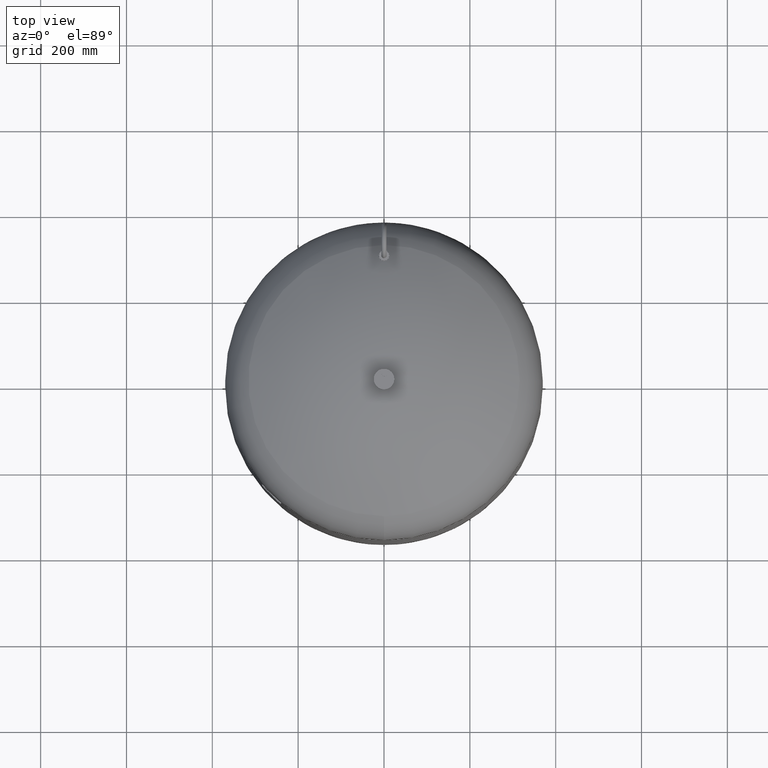
[diagram: clean part render]
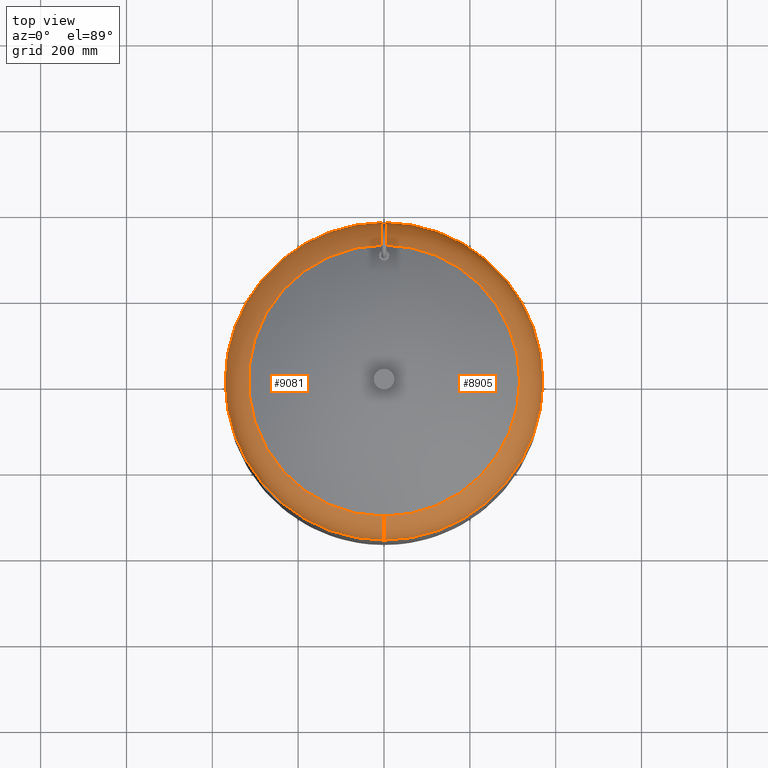
[diagram: same view with one multi-face feature highlighted, each face labeled with its STEP entity id]
A machine part, top view. The highlighted faces form ONE feature: a constant-radius fillet chain: 2 tangent blend faces with common blend radius 115.5 mm. The faces share edges in the B-rep.
Their STEP definitions:
[1] entity #9081 (Torus):
#8827=CARTESIAN_POINT('',(-370.0,1.062956E-014,1031.206120388130600));
#8828=VERTEX_POINT('',#8827);
#8835=CARTESIAN_POINT('',(2.218985E-014,369.999999999999940,1031.206120388130300));
#8836=VERTEX_POINT('',#8835);
#8837=CARTESIAN_POINT('',(-2.312058E-014,-3.468087E-014,1031.206120388130600));
#8838=DIRECTION('',(0.0,0.0,-1.0));
#8839=DIRECTION('',(1.0,0.0,0.0));
#8840=AXIS2_PLACEMENT_3D('',#8837,#8838,#8839);
#8841=CIRCLE('',#8840,370.0);
#8842=EDGE_CURVE('',#8828,#8836,#8841,.T.);
#8859=CARTESIAN_POINT('',(-2.312058E-014,-370.000000000000060,1031.206120388130600));
#8860=VERTEX_POINT('',#8859);
#8861=CARTESIAN_POINT('',(-1.114251E-014,-315.931034482758610,1129.014494274920500));
#8862=VERTEX_POINT('',#8861);
#8863=CARTESIAN_POINT('',(-2.312058E-014,-254.500000000000060,1031.206120388130300));
#8864=DIRECTION('',(-1.0,0.0,0.0));
#8865=DIRECTION('',(0.0,-1.0,0.0));
#8866=AXIS2_PLACEMENT_3D('',#8863,#8864,#8865);
#8867=CIRCLE('',#8866,115.500000000000000);
#8868=EDGE_CURVE('',#8860,#8862,#8867,.T.);
#8878=CARTESIAN_POINT('',(2.754660E-014,315.931034482758610,1129.014494274920300));
#8879=VERTEX_POINT('',#8878);
#8880=CARTESIAN_POINT('',(8.045650E-015,254.500000000000000,1031.206120388130300));
#8881=DIRECTION('',(1.0,0.0,0.0));
#8882=DIRECTION('',(0.0,1.0,0.0));
#8883=AXIS2_PLACEMENT_3D('',#8880,#8881,#8882);
#8884=CIRCLE('',#8883,115.500000000000000);
#8885=EDGE_CURVE('',#8836,#8879,#8884,.T.);
#9053=CARTESIAN_POINT('',(-1.114251E-014,-1.671377E-014,1129.014494274920500));
#9054=DIRECTION('',(0.0,0.0,-1.0));
#9055=DIRECTION('',(1.0,0.0,0.0));
#9056=AXIS2_PLACEMENT_3D('',#9053,#9054,#9055);
#9057=CIRCLE('',#9056,315.931034482758610);
#9058=EDGE_CURVE('',#8862,#8879,#9057,.T.);
#9063=CARTESIAN_POINT('',(-2.312058E-014,-3.468087E-014,1031.206120388130300));
#9064=DIRECTION('',(-1.224647E-016,-1.836970E-016,-1.0));
#9065=DIRECTION('',(0.0,-1.0,0.0));
#9066=AXIS2_PLACEMENT_3D('',#9063,#9064,#9065);
#9067=TOROIDAL_SURFACE('',#9066,254.500000000000030,115.500000000000000);
#9068=ORIENTED_EDGE('',*,*,#8868,.T.);
#9069=ORIENTED_EDGE('',*,*,#9058,.T.);
#9070=ORIENTED_EDGE('',*,*,#8885,.F.);
#9071=ORIENTED_EDGE('',*,*,#8842,.F.);
#9072=CARTESIAN_POINT('',(-2.312058E-014,-3.468087E-014,1031.206120388130600));
#9073=DIRECTION('',(0.0,0.0,-1.0));
#9074=DIRECTION('',(1.0,0.0,0.0));
#9075=AXIS2_PLACEMENT_3D('',#9072,#9073,#9074);
#9076=CIRCLE('',#9075,370.0);
#9077=EDGE_CURVE('',#8860,#8828,#9076,.T.);
#9078=ORIENTED_EDGE('',*,*,#9077,.F.);
#9079=EDGE_LOOP('',(#9068,#9069,#9070,#9071,#9078));
#9080=FACE_OUTER_BOUND('',#9079,.T.);
#9081=ADVANCED_FACE('',(#9080),#9067,.T.);
[2] entity #8905 (Torus):
#8810=CARTESIAN_POINT('',(370.0,-3.468087E-014,1031.206120388130300));
#8811=VERTEX_POINT('',#8810);
#8835=CARTESIAN_POINT('',(2.218985E-014,369.999999999999940,1031.206120388130300));
#8836=VERTEX_POINT('',#8835);
#8844=CARTESIAN_POINT('',(-2.312058E-014,-3.468087E-014,1031.206120388130600));
#8845=DIRECTION('',(0.0,0.0,-1.0));
#8846=DIRECTION('',(1.0,0.0,0.0));
#8847=AXIS2_PLACEMENT_3D('',#8844,#8845,#8846);
#8848=CIRCLE('',#8847,370.0);
#8849=EDGE_CURVE('',#8836,#8811,#8848,.T.);
#8854=CARTESIAN_POINT('',(-2.312058E-014,-3.468087E-014,1031.206120388130300));
#8855=DIRECTION('',(-1.224647E-016,-1.836970E-016,-1.0));
#8856=DIRECTION('',(0.0,-1.0,0.0));
#8857=AXIS2_PLACEMENT_3D('',#8854,#8855,#8856);
#8858=TOROIDAL_SURFACE('',#8857,254.500000000000030,115.500000000000000);
#8859=CARTESIAN_POINT('',(-2.312058E-014,-370.000000000000060,1031.206120388130600));
#8860=VERTEX_POINT('',#8859);
#8861=CARTESIAN_POINT('',(-1.114251E-014,-315.931034482758610,1129.014494274920500));
#8862=VERTEX_POINT('',#8861);
#8863=CARTESIAN_POINT('',(-2.312058E-014,-254.500000000000060,1031.206120388130300));
#8864=DIRECTION('',(-1.0,0.0,0.0));
#8865=DIRECTION('',(0.0,-1.0,0.0));
#8866=AXIS2_PLACEMENT_3D('',#8863,#8864,#8865);
#8867=CIRCLE('',#8866,115.500000000000000);
#8868=EDGE_CURVE('',#8860,#8862,#8867,.T.);
#8869=ORIENTED_EDGE('',*,*,#8868,.F.);
#8870=CARTESIAN_POINT('',(-2.312058E-014,-3.468087E-014,1031.206120388130600));
#8871=DIRECTION('',(0.0,0.0,-1.0));
#8872=DIRECTION('',(1.0,0.0,0.0));
#8873=AXIS2_PLACEMENT_3D('',#8870,#8871,#8872);
#8874=CIRCLE('',#8873,370.0);
#8875=EDGE_CURVE('',#8811,#8860,#8874,.T.);
#8876=ORIENTED_EDGE('',*,*,#8875,.F.);
#8877=ORIENTED_EDGE('',*,*,#8849,.F.);
#8878=CARTESIAN_POINT('',(2.754660E-014,315.931034482758610,1129.014494274920300));
#8879=VERTEX_POINT('',#8878);
#8880=CARTESIAN_POINT('',(8.045650E-015,254.500000000000000,1031.206120388130300));
#8881=DIRECTION('',(1.0,0.0,0.0));
#8882=DIRECTION('',(0.0,1.0,0.0));
#8883=AXIS2_PLACEMENT_3D('',#8880,#8881,#8882);
#8884=CIRCLE('',#8883,115.500000000000000);
#8885=EDGE_CURVE('',#8836,#8879,#8884,.T.);
#8886=ORIENTED_EDGE('',*,*,#8885,.T.);
#8887=CARTESIAN_POINT('',(315.931034482758610,-1.671377E-014,1129.014494274920500));
#8888=VERTEX_POINT('',#8887);
#8889=CARTESIAN_POINT('',(-1.114251E-014,-1.671377E-014,1129.014494274920500));
#8890=DIRECTION('',(0.0,0.0,-1.0));
#8891=DIRECTION('',(1.0,0.0,0.0));
#8892=AXIS2_PLACEMENT_3D('',#8889,#8890,#8891);
#8893=CIRCLE('',#8892,315.931034482758610);
#8894=EDGE_CURVE('',#8879,#8888,#8893,.T.);
#8895=ORIENTED_EDGE('',*,*,#8894,.T.);
#8896=CARTESIAN_POINT('',(-1.114251E-014,-1.671377E-014,1129.014494274920500));
#8897=DIRECTION('',(0.0,0.0,-1.0));
#8898=DIRECTION('',(1.0,0.0,0.0));
#8899=AXIS2_PLACEMENT_3D('',#8896,#8897,#8898);
#8900=CIRCLE('',#8899,315.931034482758610);
#8901=EDGE_CURVE('',#8888,#8862,#8900,.T.);
#8902=ORIENTED_EDGE('',*,*,#8901,.T.);
#8903=EDGE_LOOP('',(#8869,#8876,#8877,#8886,#8895,#8902));
#8904=FACE_OUTER_BOUND('',#8903,.T.);
#8905=ADVANCED_FACE('',(#8904),#8858,.T.);